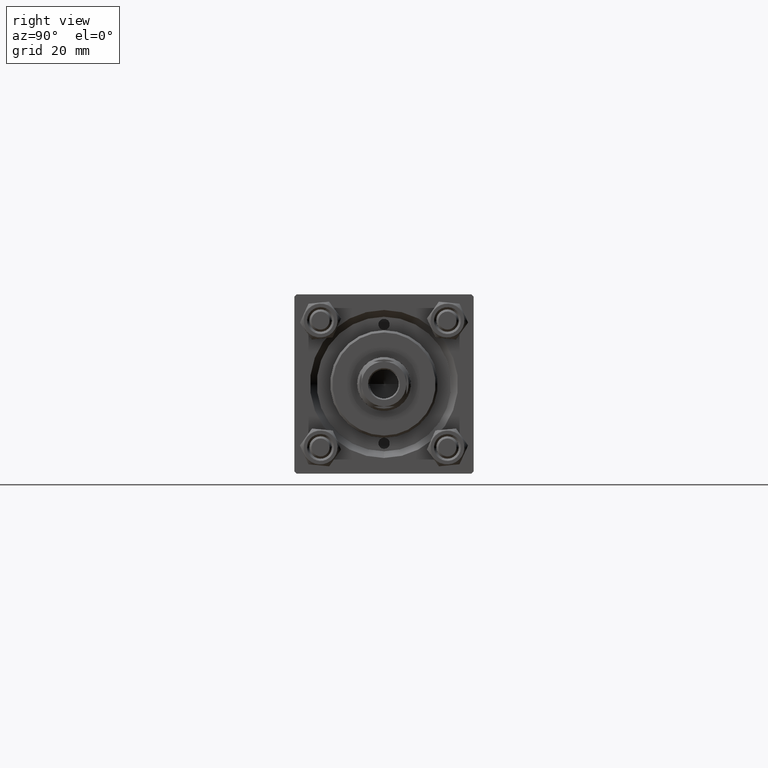
[diagram: clean part render]
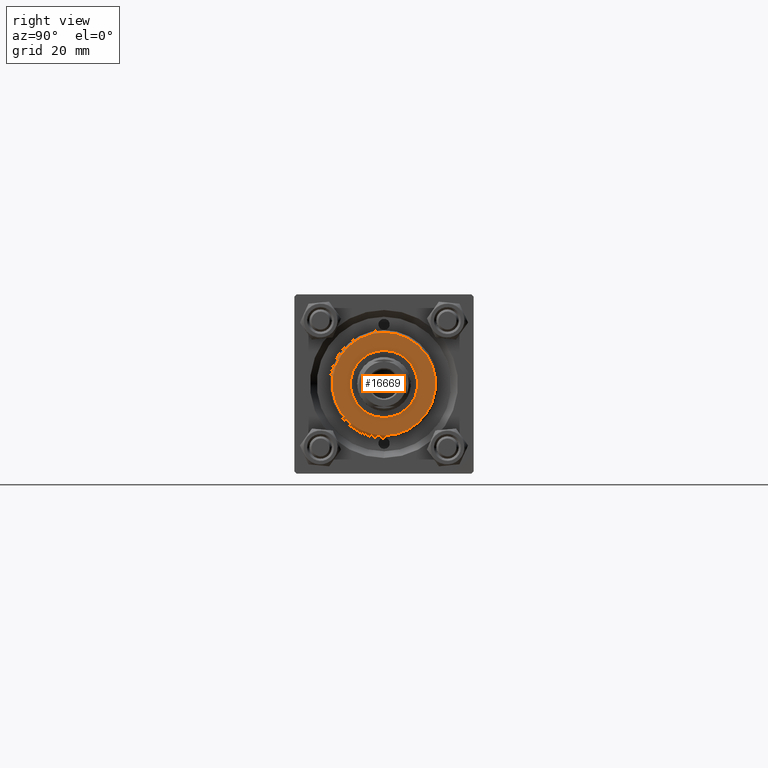
[diagram: same view with one face highlighted and labeled with its STEP entity id]
A machine part, right view. The second image highlights one B-rep face of the part: STEP entity #16669.
In plain terms, the highlighted planar face has unit normal (1, 0, -0).
Its self-contained STEP definition (entity closure, byte-faithful):
#2993 = EDGE_CURVE ( 'NONE', #14760, #43938, #31421, .T. ) ;
#6583 = FACE_BOUND ( 'NONE', #34206, .T. ) ;
#8292 = CIRCLE ( 'NONE', #9139, 11.49999999999999645 ) ;
#9139 = AXIS2_PLACEMENT_3D ( 'NONE', #27097, #30646, #39252 ) ;
#10888 = PLANE ( 'NONE',  #27687 ) ;
#11266 = DIRECTION ( 'NONE',  ( 1.000000000000000000, 0.000000000000000000, 0.000000000000000000 ) ) ;
#11276 = ORIENTED_EDGE ( 'NONE', *, *, #43466, .F. ) ;
#13306 = AXIS2_PLACEMENT_3D ( 'NONE', #32132, #36930, #47560 ) ;
#13506 = DIRECTION ( 'NONE',  ( 1.000000000000000000, 0.000000000000000000, 0.000000000000000000 ) ) ;
#13918 = FACE_OUTER_BOUND ( 'NONE', #26878, .T. ) ;
#14522 = AXIS2_PLACEMENT_3D ( 'NONE', #45830, #30162, #11266 ) ;
#14658 = DIRECTION ( 'NONE',  ( 0.000000000000000000, 0.000000000000000000, 1.000000000000000000 ) ) ;
#14760 = VERTEX_POINT ( 'NONE', #24451 ) ;
#16669 = ADVANCED_FACE ( 'NONE', ( #6583, #13918 ), #10888, .T. ) ;
#21152 = CARTESIAN_POINT ( 'NONE',  ( -7.500000000000000888, 9.184850993605149917E-16, 35.70000000000000284 ) ) ;
#24451 = CARTESIAN_POINT ( 'NONE',  ( 7.500000000000000888, 0.000000000000000000, 35.70000000000000284 ) ) ;
#26226 = CARTESIAN_POINT ( 'NONE',  ( 0.000000000000000000, 0.000000000000000000, 35.70000000000000284 ) ) ;
#26269 = ORIENTED_EDGE ( 'NONE', *, *, #46756, .T. ) ;
#26878 = EDGE_LOOP ( 'NONE', ( #26269, #36661 ) ) ;
#27097 = CARTESIAN_POINT ( 'NONE',  ( 0.000000000000000000, 0.000000000000000000, 35.70000000000000284 ) ) ;
#27687 = AXIS2_PLACEMENT_3D ( 'NONE', #26226, #14658, #41664 ) ;
#29379 = CIRCLE ( 'NONE', #13306, 7.500000000000000888 ) ;
#30162 = DIRECTION ( 'NONE',  ( 0.000000000000000000, 0.000000000000000000, 1.000000000000000000 ) ) ;
#30646 = DIRECTION ( 'NONE',  ( 0.000000000000000000, 0.000000000000000000, 1.000000000000000000 ) ) ;
#31164 = VERTEX_POINT ( 'NONE', #35036 ) ;
#31421 = CIRCLE ( 'NONE', #14522, 7.500000000000000888 ) ;
#32132 = CARTESIAN_POINT ( 'NONE',  ( 0.000000000000000000, 0.000000000000000000, 35.70000000000000284 ) ) ;
#34206 = EDGE_LOOP ( 'NONE', ( #45649, #11276 ) ) ;
#35036 = CARTESIAN_POINT ( 'NONE',  ( 11.49999999999999645, 1.438959988998139963E-15, 35.70000000000000284 ) ) ;
#35074 = VERTEX_POINT ( 'NONE', #45084 ) ;
#35151 = EDGE_CURVE ( 'NONE', #31164, #35074, #8292, .T. ) ;
#36661 = ORIENTED_EDGE ( 'NONE', *, *, #35151, .T. ) ;
#36930 = DIRECTION ( 'NONE',  ( 0.000000000000000000, 0.000000000000000000, 1.000000000000000000 ) ) ;
#39252 = DIRECTION ( 'NONE',  ( 1.000000000000000000, 0.000000000000000000, 0.000000000000000000 ) ) ;
#40791 = AXIS2_PLACEMENT_3D ( 'NONE', #41263, #48329, #13506 ) ;
#41263 = CARTESIAN_POINT ( 'NONE',  ( 0.000000000000000000, 0.000000000000000000, 35.70000000000000284 ) ) ;
#41664 = DIRECTION ( 'NONE',  ( 1.000000000000000000, 0.000000000000000000, -0.000000000000000000 ) ) ;
#43466 = EDGE_CURVE ( 'NONE', #43938, #14760, #29379, .T. ) ;
#43938 = VERTEX_POINT ( 'NONE', #21152 ) ;
#45084 = CARTESIAN_POINT ( 'NONE',  ( -11.49999999999999645, 0.000000000000000000, 35.70000000000000284 ) ) ;
#45649 = ORIENTED_EDGE ( 'NONE', *, *, #2993, .F. ) ;
#45830 = CARTESIAN_POINT ( 'NONE',  ( 0.000000000000000000, 0.000000000000000000, 35.70000000000000284 ) ) ;
#46756 = EDGE_CURVE ( 'NONE', #35074, #31164, #48878, .T. ) ;
#47560 = DIRECTION ( 'NONE',  ( 1.000000000000000000, 0.000000000000000000, 0.000000000000000000 ) ) ;
#48329 = DIRECTION ( 'NONE',  ( 0.000000000000000000, 0.000000000000000000, 1.000000000000000000 ) ) ;
#48878 = CIRCLE ( 'NONE', #40791, 11.49999999999999645 ) ;